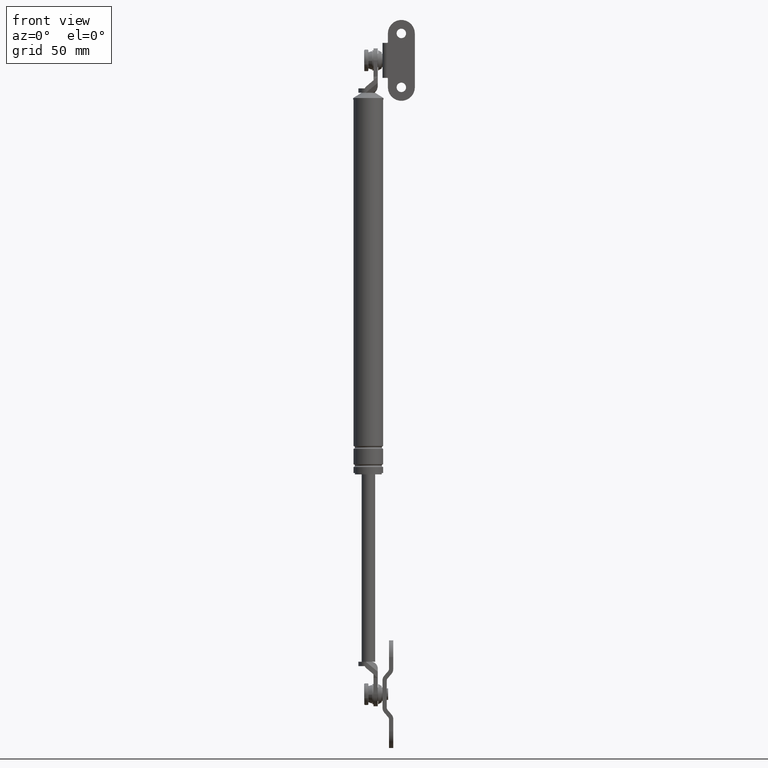
[diagram: clean part render]
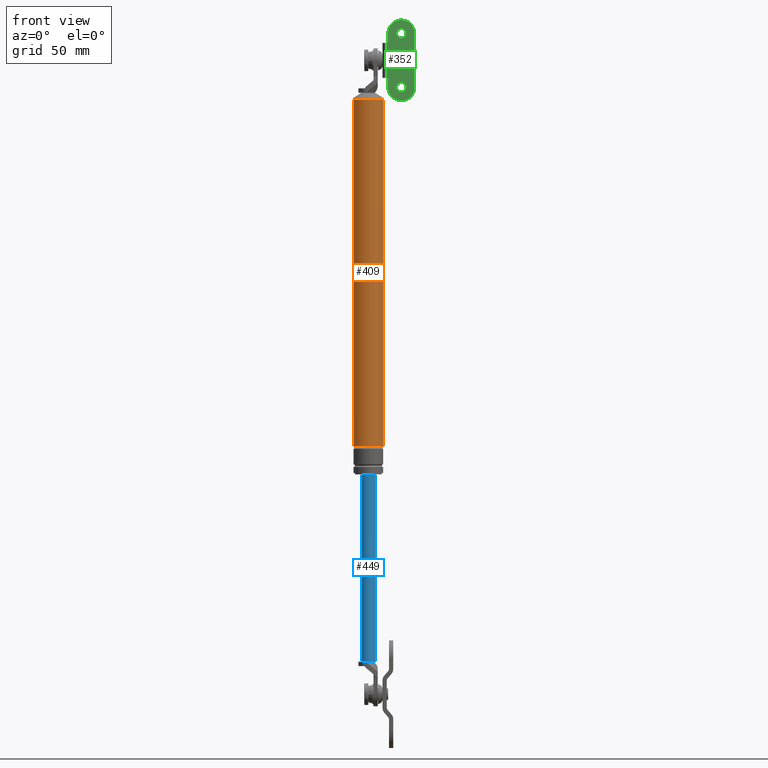
[diagram: same view with three faces highlighted in distinct colors, each labeled with its STEP entity id]
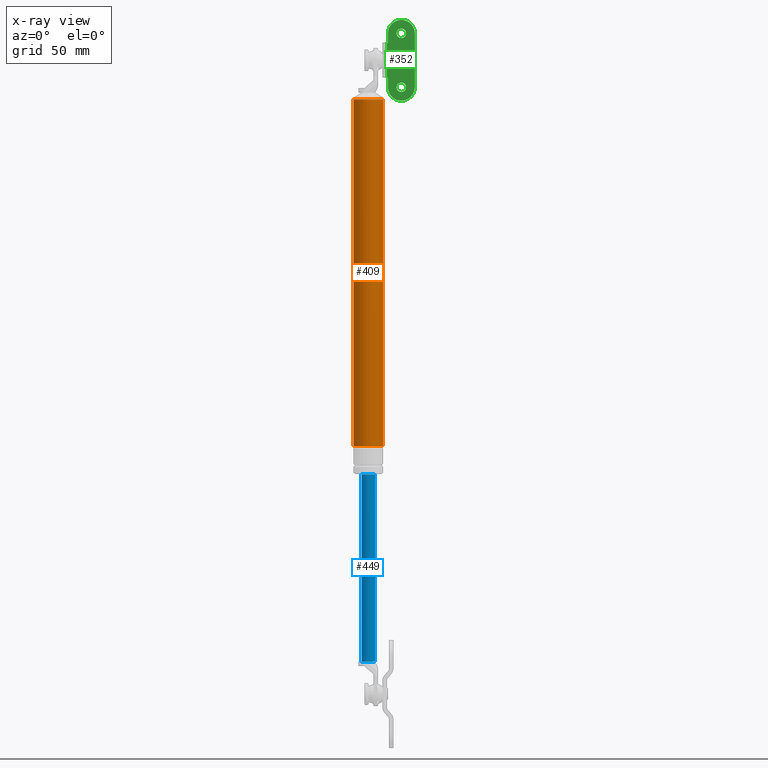
[diagram: x-ray of the same camera — body ghosted, the three highlighted faces saturated]
A machine part, front view with three faces highlighted in distinct colors.
The next image is the same camera in x-ray (body ghosted, the three faces saturated) — at least one of them is partly hidden behind the body in this view.
Their STEP definitions:

[orange] entity #409 — the highlighted cylindrical surface (edge-blend (fillet) strip) has radius 11 mm, axis along (0, 0, 1).
#409=ADVANCED_FACE('',(#1784),#1783,.T.);
#1783=CYLINDRICAL_SURFACE('',#3069,1.09999999738E+001);
#1784=FACE_OUTER_BOUND('',#3070,.T.);
#3066=CARTESIAN_POINT('',(-2.61800288115E-008,0.00000000000E+000,0.00000000000E+000));
#3067=DIRECTION('',(-0.00000000000E+000,-0.00000000000E+000,1.00000000000E+000));
#3068=DIRECTION('',(1.00000000000E+000,-0.00000000000E+000,-0.00000000000E+000));
#3069=AXIS2_PLACEMENT_3D('',#3066,#3067,#3068);
#3070=EDGE_LOOP('',(#4082,#4083,#4084,#4085));
#4082=ORIENTED_EDGE('',*,*,#4623,.F.);
#4083=ORIENTED_EDGE('',*,*,#4620,.T.);
#4084=ORIENTED_EDGE('',*,*,#4612,.F.);
#4085=ORIENTED_EDGE('',*,*,#4622,.F.);
#4612=EDGE_CURVE('',#6887,#6888,#6889,.T.);
#4620=EDGE_CURVE('',#6941,#6888,#6942,.T.);
#4622=EDGE_CURVE('',#6948,#6887,#6955,.T.);
#4623=EDGE_CURVE('',#6941,#6948,#6961,.T.);
#6887=VERTEX_POINT('',#8919);
#6888=VERTEX_POINT('',#8920);
#6889=CIRCLE('',#8924,1.09999999738E+001);
#6941=VERTEX_POINT('',#8953);
#6942=(BOUNDED_CURVE() B_SPLINE_CURVE(1,(#8954,#8955),.UNSPECIFIED.,.F.,.F.) B_SPLINE_CURVE_WITH_KNOTS((2,2),(3.61141205768E-002,9.63885879420E-001),.UNSPECIFIED.) CURVE() GEOMETRIC_REPRESENTATION_ITEM() RATIONAL_B_SPLINE_CURVE((1.00000000000E+000,1.00000000000E+000)) REPRESENTATION_ITEM('') );
#6948=VERTEX_POINT('',#8956);
#6955=(BOUNDED_CURVE() B_SPLINE_CURVE(1,(#8961,#8962),.UNSPECIFIED.,.F.,.F.) B_SPLINE_CURVE_WITH_KNOTS((2,2),(3.61141206212E-002,9.63885879379E-001),.UNSPECIFIED.) CURVE() GEOMETRIC_REPRESENTATION_ITEM() RATIONAL_B_SPLINE_CURVE((7.50000000000E-001,7.50000000000E-001)) REPRESENTATION_ITEM('') );
#6961=CIRCLE('',#8966,1.10000000524E+001);
#8919=CARTESIAN_POINT('',(-1.10000000000E+001,0.00000000000E+000,8.38999850000E+001));
#8920=CARTESIAN_POINT('',(1.09999999476E+001,1.18423789293E-015,8.38999850000E+001));
#8921=CARTESIAN_POINT('',(-2.61800288115E-008,0.00000000000E+000,8.38999850000E+001));
#8922=DIRECTION('',(0.00000000000E+000,0.00000000000E+000,1.00000000000E+000));
#8923=DIRECTION('',(-1.00000000000E+000,-1.22460635382E-016,0.00000000000E+000));
#8924=AXIS2_PLACEMENT_3D('',#8921,#8922,#8923);
#8953=CARTESIAN_POINT('',(1.10000000524E+001,-5.98040135931E-014,-1.73000015000E+002));
#8954=CARTESIAN_POINT('',(1.09999999476E+001,0.00000000000E+000,-1.73000015012E+002));
#8955=CARTESIAN_POINT('',(1.09999999476E+001,0.00000000000E+000,8.38999850113E+001));
#8956=CARTESIAN_POINT('',(-1.10000000524E+001,-5.96163199979E-014,-1.73000015000E+002));
#8961=CARTESIAN_POINT('',(-1.10000000000E+001,0.00000000000E+000,-1.73000015000E+002));
#8962=CARTESIAN_POINT('',(-1.10000000000E+001,0.00000000000E+000,8.38999850000E+001));
#8963=CARTESIAN_POINT('',(0.00000000000E+000,-5.96163199979E-014,-1.73000015000E+002));
#8964=DIRECTION('',(-0.00000000000E+000,0.00000000000E+000,-1.00000000000E+000));
#8965=DIRECTION('',(-1.00000000000E+000,-1.22460635382E-016,0.00000000000E+000));
#8966=AXIS2_PLACEMENT_3D('',#8963,#8964,#8965);

[blue] entity #449 — the highlighted cylindrical surface (edge-blend (fillet) strip) has radius 5 mm, axis along (0, 0, 1).
#449=ADVANCED_FACE('',(#2186),#2185,.T.);
#2185=CYLINDRICAL_SURFACE('',#3417,5.00000002618E+000);
#2186=FACE_OUTER_BOUND('',#3418,.T.);
#3414=CARTESIAN_POINT('',(0.00000000000E+000,-2.61800128243E-008,0.00000000000E+000));
#3415=DIRECTION('',(-0.00000000000E+000,-0.00000000000E+000,1.00000000000E+000));
#3416=DIRECTION('',(-1.00000000000E+000,5.23598998637E-009,0.00000000000E+000));
#3417=AXIS2_PLACEMENT_3D('',#3414,#3415,#3416);
#3418=EDGE_LOOP('',(#4276,#4277,#4278,#4279,#4280));
#4276=ORIENTED_EDGE('',*,*,#4699,.F.);
#4277=ORIENTED_EDGE('',*,*,#4715,.F.);
#4278=ORIENTED_EDGE('',*,*,#4711,.F.);
#4279=ORIENTED_EDGE('',*,*,#4702,.F.);
#4280=ORIENTED_EDGE('',*,*,#4716,.T.);
#4699=EDGE_CURVE('',#7459,#7458,#7466,.T.);
#4702=EDGE_CURVE('',#7479,#7472,#7486,.T.);
#4711=EDGE_CURVE('',#7472,#7542,#7543,.T.);
#4715=EDGE_CURVE('',#7542,#7459,#7567,.T.);
#4716=EDGE_CURVE('',#7479,#7458,#7573,.T.);
#7458=VERTEX_POINT('',#9257);
#7459=VERTEX_POINT('',#9258);
#7466=CIRCLE('',#9266,5.00000002618E+000);
#7472=VERTEX_POINT('',#9267);
#7479=VERTEX_POINT('',#9271);
#7486=CIRCLE('',#9279,5.00000007854E+000);
#7542=VERTEX_POINT('',#9309);
#7543=CIRCLE('',#9313,5.00000007854E+000);
#7567=(BOUNDED_CURVE() B_SPLINE_CURVE(1,(#9322,#9323),.UNSPECIFIED.,.F.,.F.) B_SPLINE_CURVE_WITH_KNOTS((2,2),(6.28930816424E-002,9.37106918113E-001),.UNSPECIFIED.) CURVE() GEOMETRIC_REPRESENTATION_ITEM() RATIONAL_B_SPLINE_CURVE((1.00000000000E+000,1.00000000000E+000)) REPRESENTATION_ITEM('') );
#7573=(BOUNDED_CURVE() B_SPLINE_CURVE(1,(#9324,#9325),.UNSPECIFIED.,.F.,.F.) B_SPLINE_CURVE_WITH_KNOTS((2,2),(6.28930817610E-002,9.37106918239E-001),.UNSPECIFIED.) CURVE() GEOMETRIC_REPRESENTATION_ITEM() RATIONAL_B_SPLINE_CURVE((7.50000000000E-001,7.50000000000E-001)) REPRESENTATION_ITEM('') );
#9257=CARTESIAN_POINT('',(5.00000002618E+000,-2.61800128243E-008,-1.94000015000E+002));
#9258=CARTESIAN_POINT('',(-5.00000002618E+000,-6.12843109593E-014,-1.94000015000E+002));
#9263=CARTESIAN_POINT('',(0.00000000000E+000,-2.61800128243E-008,-1.94000015000E+002));
#9264=DIRECTION('',(0.00000000000E+000,0.00000000000E+000,1.00000000000E+000));
#9265=DIRECTION('',(1.00000000000E+000,-1.22460635382E-016,0.00000000000E+000));
#9266=AXIS2_PLACEMENT_3D('',#9263,#9264,#9265);
#9267=CARTESIAN_POINT('',(2.00000000000E+000,-4.58257578065E+000,-3.33000015000E+002));
#9271=CARTESIAN_POINT('',(5.00000007854E+000,2.18807031133E-006,-3.33000015000E+002));
#9276=CARTESIAN_POINT('',(0.00000000000E+000,-5.96163199979E-014,-3.33000015000E+002));
#9277=DIRECTION('',(0.00000000000E+000,0.00000000000E+000,-1.00000000000E+000));
#9278=DIRECTION('',(3.99999993717E-001,9.16515141733E-001,0.00000000000E+000));
#9279=AXIS2_PLACEMENT_3D('',#9276,#9277,#9278);
#9309=CARTESIAN_POINT('',(-5.00000007854E+000,-1.92893489989E-008,-3.33000015000E+002));
#9310=CARTESIAN_POINT('',(0.00000000000E+000,-5.96163199979E-014,-3.33000015000E+002));
#9311=DIRECTION('',(0.00000000000E+000,0.00000000000E+000,-1.00000000000E+000));
#9312=DIRECTION('',(1.00000000000E+000,-0.00000000000E+000,-0.00000000000E+000));
#9313=AXIS2_PLACEMENT_3D('',#9310,#9311,#9312);
#9322=CARTESIAN_POINT('',(-5.00000002618E+000,-6.27553556001E-014,-3.33000015019E+002));
#9323=CARTESIAN_POINT('',(-5.00000002618E+000,-6.27553556001E-014,-1.94000015020E+002));
#9324=CARTESIAN_POINT('',(5.00000002618E+000,-5.23599628840E-008,-3.33000015000E+002));
#9325=CARTESIAN_POINT('',(5.00000002618E+000,-5.23599628840E-008,-1.94000015000E+002));

[green] entity #352 — the highlighted planar face has unit normal (0, -1, 0).
#352=ADVANCED_FACE('',(#1203,#1204,#1205),#1202,.T.);
#1202=PLANE('',#2609);
#1203=FACE_OUTER_BOUND('',#2610,.T.);
#1204=FACE_BOUND('',#2611,.T.);
#1205=FACE_BOUND('',#2612,.T.);
#2606=CARTESIAN_POINT('',(6.63047447386E+001,-2.28800000000E+001,1.90587479342E+002));
#2607=DIRECTION('',(0.00000000000E+000,0.00000000000E+000,1.00000000000E+000));
#2608=DIRECTION('',(1.00000000000E+000,0.00000000000E+000,0.00000000000E+000));
#2609=AXIS2_PLACEMENT_3D('',#2606,#2607,#2608);
#2610=EDGE_LOOP('',(#3800,#3801,#3802,#3803,#3804,#3805,#3806,#3807,#3808,#3809));
#2611=EDGE_LOOP('',(#3810,#3811));
#2612=EDGE_LOOP('',(#3812,#3813));
#3800=ORIENTED_EDGE('',*,*,#4481,.F.);
#3801=ORIENTED_EDGE('',*,*,#4482,.T.);
#3802=ORIENTED_EDGE('',*,*,#4483,.F.);
#3803=ORIENTED_EDGE('',*,*,#4484,.T.);
#3804=ORIENTED_EDGE('',*,*,#4479,.F.);
#3805=ORIENTED_EDGE('',*,*,#4476,.F.);
#3806=ORIENTED_EDGE('',*,*,#4485,.F.);
#3807=ORIENTED_EDGE('',*,*,#4486,.F.);
#3808=ORIENTED_EDGE('',*,*,#4487,.F.);
#3809=ORIENTED_EDGE('',*,*,#4488,.T.);
#3810=ORIENTED_EDGE('',*,*,#4489,.T.);
#3811=ORIENTED_EDGE('',*,*,#4490,.T.);
#3812=ORIENTED_EDGE('',*,*,#4491,.T.);
#3813=ORIENTED_EDGE('',*,*,#4492,.T.);
#4476=EDGE_CURVE('',#5977,#5984,#5985,.T.);
#4479=EDGE_CURVE('',#5984,#6004,#6005,.T.);
#4481=EDGE_CURVE('',#6017,#6018,#6019,.T.);
#4482=EDGE_CURVE('',#6017,#6025,#6026,.T.);
#4483=EDGE_CURVE('',#6032,#6025,#6033,.T.);
#4484=EDGE_CURVE('',#6032,#6004,#6039,.T.);
#4485=EDGE_CURVE('',#6045,#5977,#6046,.T.);
#4486=EDGE_CURVE('',#6052,#6045,#6053,.T.);
#4487=EDGE_CURVE('',#6059,#6052,#6060,.T.);
#4488=EDGE_CURVE('',#6059,#6018,#6066,.T.);
#4489=EDGE_CURVE('',#6072,#6073,#6074,.T.);
#4490=EDGE_CURVE('',#6073,#6072,#6080,.T.);
#4491=EDGE_CURVE('',#6086,#6087,#6088,.T.);
#4492=EDGE_CURVE('',#6087,#6086,#6094,.T.);
#5977=VERTEX_POINT('',#8357);
#5984=VERTEX_POINT('',#8361);
#5985=CIRCLE('',#8365,1.00000000000E+001);
#6004=VERTEX_POINT('',#8373);
#6005=LINE('',#8374,#8375);
#6017=VERTEX_POINT('',#8380);
#6018=VERTEX_POINT('',#8381);
#6019=LINE('',#8382,#8383);
#6025=VERTEX_POINT('',#8385);
#6026=LINE('',#8386,#8387);
#6032=VERTEX_POINT('',#8389);
#6033=LINE('',#8390,#8391);
#6039=CIRCLE('',#8396,5.00000000000E-001);
#6045=VERTEX_POINT('',#8397);
#6046=LINE('',#8398,#8399);
#6052=VERTEX_POINT('',#8401);
#6053=CIRCLE('',#8405,1.00000000000E+001);
#6059=VERTEX_POINT('',#8406);
#6060=LINE('',#8407,#8408);
#6066=CIRCLE('',#8413,5.00000000000E-001);
#6072=VERTEX_POINT('',#8414);
#6073=VERTEX_POINT('',#8415);
#6074=CIRCLE('',#8419,3.50000000000E+000);
#6080=CIRCLE('',#8423,3.50000000000E+000);
#6086=VERTEX_POINT('',#8424);
#6087=VERTEX_POINT('',#8425);
#6088=CIRCLE('',#8429,3.50000000000E+000);
#6094=CIRCLE('',#8433,3.50000000000E+000);
#8357=CARTESIAN_POINT('',(8.23047447386E+001,-2.08000000000E+001,1.90587479342E+002));
#8361=CARTESIAN_POINT('',(8.23047447386E+001,-8.00000000000E-001,1.90587479342E+002));
#8362=CARTESIAN_POINT('',(8.23047447386E+001,-1.08000000000E+001,1.90587479342E+002));
#8363=DIRECTION('',(0.00000000000E+000,0.00000000000E+000,-1.00000000000E+000));
#8364=DIRECTION('',(1.83690953073E-016,1.00000000000E+000,0.00000000000E+000));
#8365=AXIS2_PLACEMENT_3D('',#8362,#8363,#8364);
#8373=CARTESIAN_POINT('',(8.88047447386E+001,-8.00000000000E-001,1.90587479342E+002));
#8374=CARTESIAN_POINT('',(8.23047447386E+001,-8.00000000000E-001,1.90587479342E+002));
#8375=VECTOR('',#8376,6.50000000000E+000);
#8376=DIRECTION('',(1.00000000000E+000,0.00000000000E+000,0.00000000000E+000));
#8380=CARTESIAN_POINT('',(1.15304744739E+002,-2.53269627493E-013,1.90587479342E+002));
#8381=CARTESIAN_POINT('',(1.15304744739E+002,-3.00000000000E-001,1.90587479342E+002));
#8382=CARTESIAN_POINT('',(1.15304744739E+002,-2.53269627493E-013,1.90587479342E+002));
#8383=VECTOR('',#8384,3.00000000000E-001);
#8384=DIRECTION('',(0.00000000000E+000,-1.00000000000E+000,0.00000000000E+000));
#8385=CARTESIAN_POINT('',(8.93047447386E+001,-2.53269627493E-013,1.90587479342E+002));
#8386=CARTESIAN_POINT('',(1.15304744739E+002,-2.53269627493E-013,1.90587479342E+002));
#8387=VECTOR('',#8388,2.60000000000E+001);
#8388=DIRECTION('',(-1.00000000000E+000,0.00000000000E+000,0.00000000000E+000));
#8389=CARTESIAN_POINT('',(8.93047447386E+001,-3.00000000000E-001,1.90587479342E+002));
#8390=CARTESIAN_POINT('',(8.93047447386E+001,-3.00000000000E-001,1.90587479342E+002));
#8391=VECTOR('',#8392,3.00000000000E-001);
#8392=DIRECTION('',(0.00000000000E+000,1.00000000000E+000,0.00000000000E+000));
#8393=CARTESIAN_POINT('',(8.88047447386E+001,-3.00000000000E-001,1.90587479342E+002));
#8394=DIRECTION('',(0.00000000000E+000,0.00000000000E+000,-1.00000000000E+000));
#8395=DIRECTION('',(-1.00000000000E+000,-0.00000000000E+000,-0.00000000000E+000));
#8396=AXIS2_PLACEMENT_3D('',#8393,#8394,#8395);
#8397=CARTESIAN_POINT('',(1.22304744739E+002,-2.08000000000E+001,1.90587479342E+002));
#8398=CARTESIAN_POINT('',(1.22304744739E+002,-2.08000000000E+001,1.90587479342E+002));
#8399=VECTOR('',#8400,4.00000000000E+001);
#8400=DIRECTION('',(-1.00000000000E+000,2.22044604925E-015,0.00000000000E+000));
#8401=CARTESIAN_POINT('',(1.22304744739E+002,-8.00000000000E-001,1.90587479342E+002));
#8402=CARTESIAN_POINT('',(1.22304744739E+002,-1.08000000000E+001,1.90587479342E+002));
#8403=DIRECTION('',(0.00000000000E+000,0.00000000000E+000,-1.00000000000E+000));
#8404=DIRECTION('',(-1.00000000000E+000,-0.00000000000E+000,-0.00000000000E+000));
#8405=AXIS2_PLACEMENT_3D('',#8402,#8403,#8404);
#8406=CARTESIAN_POINT('',(1.15804744739E+002,-8.00000000000E-001,1.90587479342E+002));
#8407=CARTESIAN_POINT('',(1.15804744739E+002,-8.00000000000E-001,1.90587479342E+002));
#8408=VECTOR('',#8409,6.50000000000E+000);
#8409=DIRECTION('',(1.00000000000E+000,0.00000000000E+000,0.00000000000E+000));
#8410=CARTESIAN_POINT('',(1.15804744739E+002,-3.00000000000E-001,1.90587479342E+002));
#8411=DIRECTION('',(0.00000000000E+000,0.00000000000E+000,-1.00000000000E+000));
#8412=DIRECTION('',(-1.00000000000E+000,-0.00000000000E+000,-0.00000000000E+000));
#8413=AXIS2_PLACEMENT_3D('',#8410,#8411,#8412);
#8414=CARTESIAN_POINT('',(8.58047447386E+001,-1.08000000000E+001,1.90587479342E+002));
#8415=CARTESIAN_POINT('',(7.88047447386E+001,-1.08000000000E+001,1.90587479342E+002));
#8416=CARTESIAN_POINT('',(8.23047447386E+001,-1.08000000000E+001,1.90587479342E+002));
#8417=DIRECTION('',(0.00000000000E+000,-0.00000000000E+000,-1.00000000000E+000));
#8418=DIRECTION('',(1.00000000000E+000,-1.22460635382E-016,0.00000000000E+000));
#8419=AXIS2_PLACEMENT_3D('',#8416,#8417,#8418);
#8420=CARTESIAN_POINT('',(8.23047447386E+001,-1.08000000000E+001,1.90587479342E+002));
#8421=DIRECTION('',(0.00000000000E+000,-0.00000000000E+000,-1.00000000000E+000));
#8422=DIRECTION('',(1.00000000000E+000,-1.22460635382E-016,0.00000000000E+000));
#8423=AXIS2_PLACEMENT_3D('',#8420,#8421,#8422);
#8424=CARTESIAN_POINT('',(1.25804744739E+002,-1.08000000000E+001,1.90587479342E+002));
#8425=CARTESIAN_POINT('',(1.18804744739E+002,-1.08000000000E+001,1.90587479342E+002));
#8426=CARTESIAN_POINT('',(1.22304744739E+002,-1.08000000000E+001,1.90587479342E+002));
#8427=DIRECTION('',(0.00000000000E+000,-0.00000000000E+000,-1.00000000000E+000));
#8428=DIRECTION('',(1.00000000000E+000,-1.22460635382E-016,0.00000000000E+000));
#8429=AXIS2_PLACEMENT_3D('',#8426,#8427,#8428);
#8430=CARTESIAN_POINT('',(1.22304744739E+002,-1.08000000000E+001,1.90587479342E+002));
#8431=DIRECTION('',(0.00000000000E+000,-0.00000000000E+000,-1.00000000000E+000));
#8432=DIRECTION('',(1.00000000000E+000,-1.22460635382E-016,0.00000000000E+000));
#8433=AXIS2_PLACEMENT_3D('',#8430,#8431,#8432);